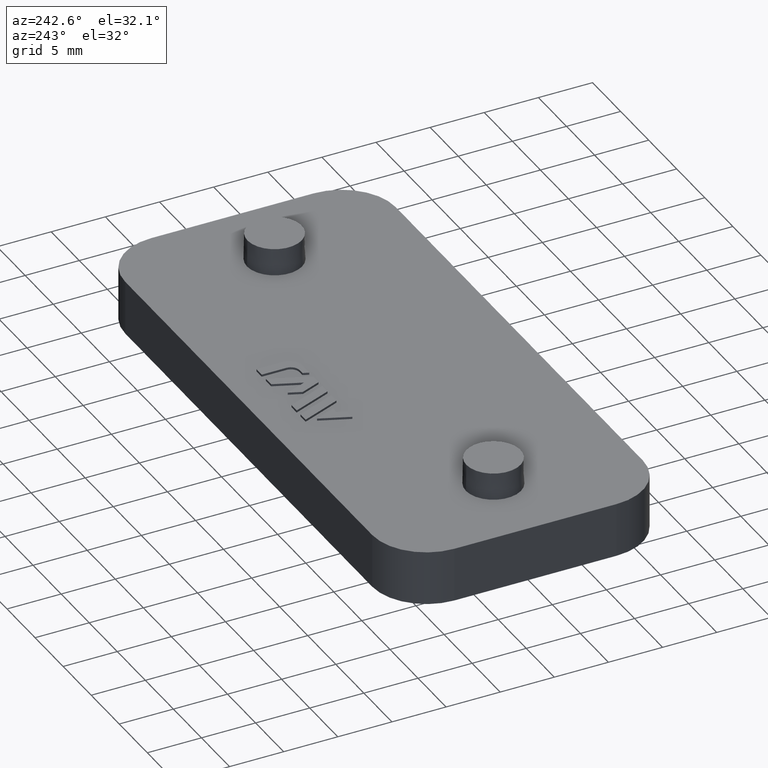
[diagram: clean part render]
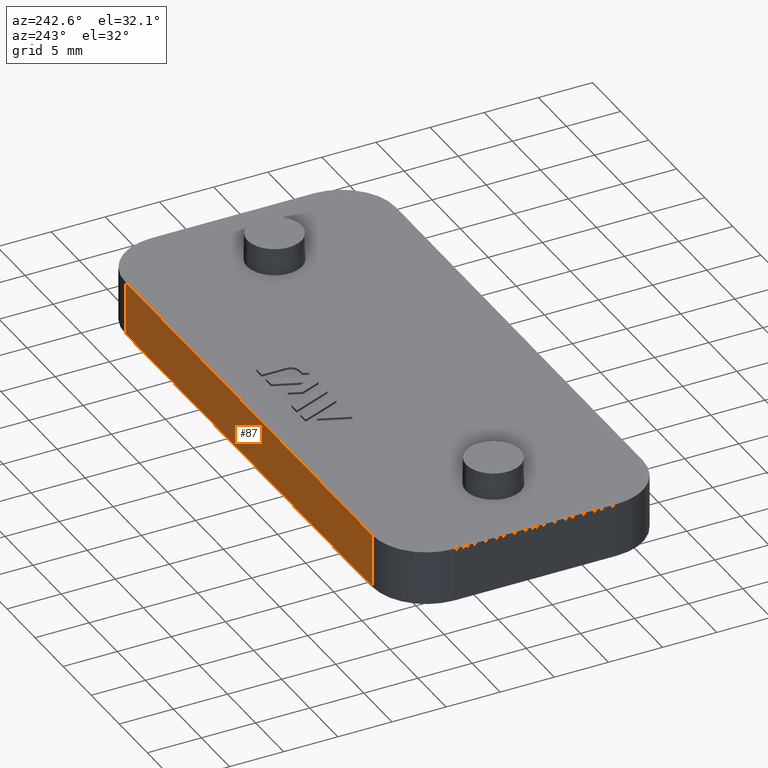
[diagram: same view with one face highlighted and labeled with its STEP entity id]
A machine part, auxiliary view. The second image highlights one B-rep face of the part: STEP entity #87.
In plain terms, the highlighted planar face has unit normal (0, -1, 0).
Its self-contained STEP definition (entity closure, byte-faithful):
#87 = ADVANCED_FACE( '', ( #448 ), #449, .F. );
#448 = FACE_OUTER_BOUND( '', #1100, .T. );
#449 = PLANE( '', #1101 );
#1100 = EDGE_LOOP( '', ( #2021, #2022, #2023, #2024 ) );
#1101 = AXIS2_PLACEMENT_3D( '', #2025, #2026, #2027 );
#2021 = ORIENTED_EDGE( '', *, *, #4122, .T. );
#2022 = ORIENTED_EDGE( '', *, *, #4393, .T. );
#2023 = ORIENTED_EDGE( '', *, *, #4256, .F. );
#2024 = ORIENTED_EDGE( '', *, *, #4394, .F. );
#2025 = CARTESIAN_POINT( '', ( -39.5000000000000, 12.5000000000000, -7.65378971138986E-016 ) );
#2026 = DIRECTION( '', ( 0.000000000000000, -1.00000000000000, 6.12303176911189E-017 ) );
#2027 = DIRECTION( '', ( -1.00000000000000, 0.000000000000000, 0.000000000000000 ) );
#4122 = EDGE_CURVE( '', #4897, #4894, #4898, .T. );
#4256 = EDGE_CURVE( '', #5159, #5161, #5162, .T. );
#4393 = EDGE_CURVE( '', #4894, #5161, #5427, .T. );
#4394 = EDGE_CURVE( '', #4897, #5159, #5428, .T. );
#4894 = VERTEX_POINT( '', #6173 );
#4897 = VERTEX_POINT( '', #6176 );
#4898 = LINE( '', #6177, #6178 );
#5159 = VERTEX_POINT( '', #6564 );
#5161 = VERTEX_POINT( '', #6566 );
#5162 = LINE( '', #6567, #6568 );
#5427 = LINE( '', #6968, #6969 );
#5428 = LINE( '', #6970, #6971 );
#6173 = CARTESIAN_POINT( '', ( 22.0000000000000, 12.5000000000000, 5.00000000000000 ) );
#6176 = CARTESIAN_POINT( '', ( -22.0000000000000, 12.5000000000000, 5.00000000000000 ) );
#6177 = CARTESIAN_POINT( '', ( -39.5000000000000, 12.5000000000000, 5.00000000000000 ) );
#6178 = VECTOR( '', #8168, 1000.00000000000 );
#6564 = CARTESIAN_POINT( '', ( -22.0000000000000, 12.5000000000000, -7.65378971138986E-016 ) );
#6566 = CARTESIAN_POINT( '', ( 22.0000000000000, 12.5000000000000, -7.65378971138986E-016 ) );
#6567 = CARTESIAN_POINT( '', ( -39.5000000000000, 12.5000000000000, -7.65378971138986E-016 ) );
#6568 = VECTOR( '', #8318, 1000.00000000000 );
#6968 = CARTESIAN_POINT( '', ( 22.0000000000000, 12.5000000000000, 71.6812418606937 ) );
#6969 = VECTOR( '', #8457, 1000.00000000000 );
#6970 = CARTESIAN_POINT( '', ( -22.0000000000000, 12.5000000000000, 84.8950854397671 ) );
#6971 = VECTOR( '', #8458, 1000.00000000000 );
#8168 = DIRECTION( '', ( 1.00000000000000, 0.000000000000000, 0.000000000000000 ) );
#8318 = DIRECTION( '', ( 1.00000000000000, 0.000000000000000, 0.000000000000000 ) );
#8457 = DIRECTION( '', ( 1.60751816480226E-016, -1.81794180051289E-016, -1.00000000000000 ) );
#8458 = DIRECTION( '', ( 1.60751816480226E-016, -1.81794180051289E-016, -1.00000000000000 ) );